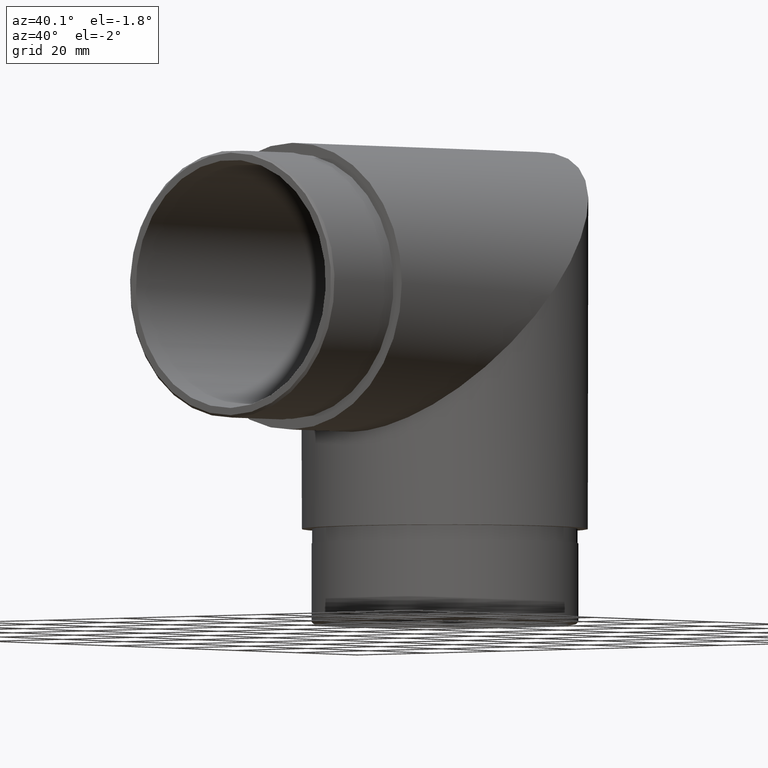
[diagram: clean part render]
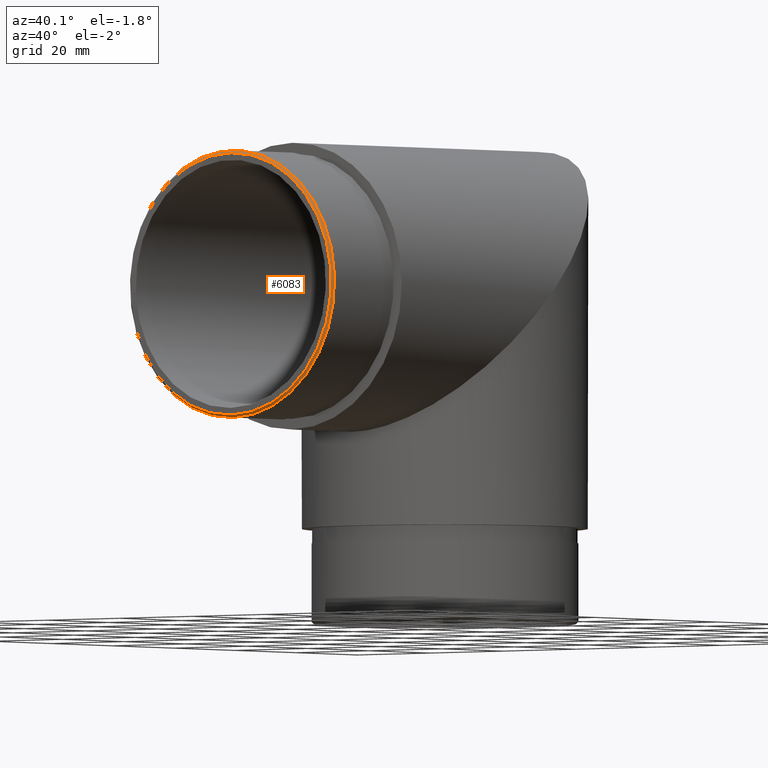
[diagram: same view with one face highlighted and labeled with its STEP entity id]
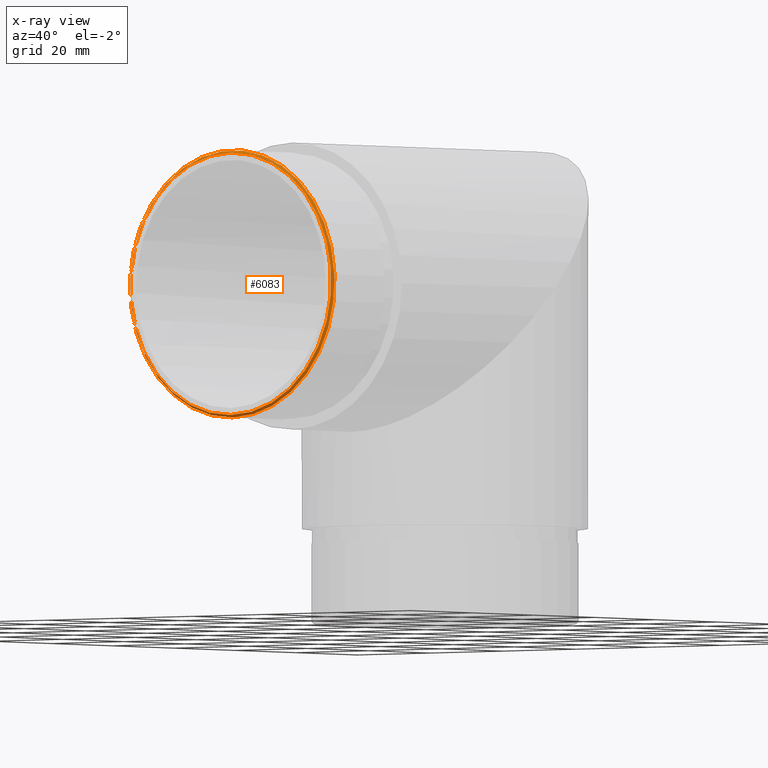
[diagram: x-ray of the same camera — body ghosted, the highlighted face saturated]
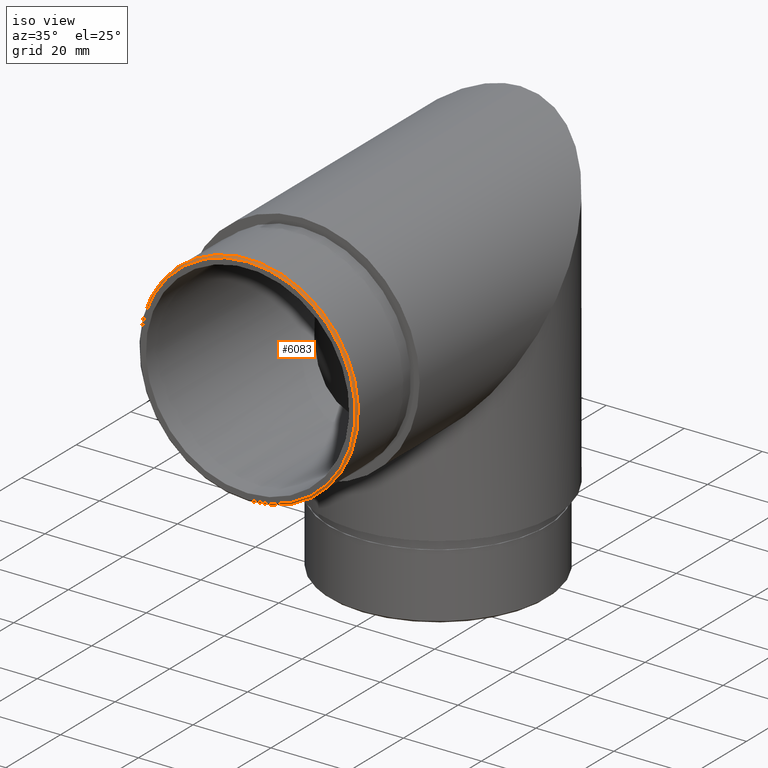
[diagram: same view with one face highlighted and labeled with its STEP entity id]
A machine part, auxiliary view. The second image highlights one B-rep face of the part: STEP entity #6083.
The next image is the same camera in x-ray: the body ghosted, the highlighted face saturated — about 0% of this face is hidden behind the body in this view.
A second angle (iso view) of the same face is appended — the face is thin or edge-on in the first view.
In plain terms, the highlighted conical surface has half-angle 45 deg.
Its self-contained STEP definition (entity closure, byte-faithful):
#535 = EDGE_LOOP ( 'NONE', ( #4344 ) ) ;
#687 = CIRCLE ( 'NONE', #4104, 28.09999999999999800 ) ;
#904 = DIRECTION ( 'NONE',  ( 0.0000000000000000000, 0.0000000000000000000, -1.000000000000000000 ) ) ;
#1808 = FACE_OUTER_BOUND ( 'NONE', #535, .T. ) ;
#2717 = CARTESIAN_POINT ( 'NONE',  ( 0.0000000000000000000, -19.50000000000000000, 0.0000000000000000000 ) ) ;
#2776 = CARTESIAN_POINT ( 'NONE',  ( 0.0000000000000000000, -20.00000000000000000, -27.59999999999999800 ) ) ;
#2933 = CARTESIAN_POINT ( 'NONE',  ( 0.0000000000000000000, -19.50000000000000000, -28.09999999999999800 ) ) ;
#3421 = DIRECTION ( 'NONE',  ( 0.0000000000000000000, 0.0000000000000000000, 1.000000000000000000 ) ) ;
#3677 = VERTEX_POINT ( 'NONE', #2776 ) ;
#4104 = AXIS2_PLACEMENT_3D ( 'NONE', #2717, #5121, #4267 ) ;
#4267 = DIRECTION ( 'NONE',  ( 0.0000000000000000000, 0.0000000000000000000, -1.000000000000000000 ) ) ;
#4344 = ORIENTED_EDGE ( 'NONE', *, *, #11084, .F. ) ;
#5121 = DIRECTION ( 'NONE',  ( 0.0000000000000000000, 1.000000000000000000, 0.0000000000000000000 ) ) ;
#5807 = VERTEX_POINT ( 'NONE', #2933 ) ;
#6083 = ADVANCED_FACE ( 'NONE', ( #1808, #7477 ), #6816, .T. ) ;
#6212 = EDGE_CURVE ( 'NONE', #3677, #3677, #8568, .T. ) ;
#6816 = CONICAL_SURFACE ( 'NONE', #10334, 27.59999999999999800, 0.7853981633974447300 ) ;
#6907 = ORIENTED_EDGE ( 'NONE', *, *, #6212, .F. ) ;
#7053 = DIRECTION ( 'NONE',  ( 0.0000000000000000000, -1.000000000000000000, 0.0000000000000000000 ) ) ;
#7477 = FACE_BOUND ( 'NONE', #10319, .T. ) ;
#7912 = CARTESIAN_POINT ( 'NONE',  ( 0.0000000000000000000, -20.00000000000000000, 0.0000000000000000000 ) ) ;
#8568 = CIRCLE ( 'NONE', #10937, 27.59999999999999800 ) ;
#10319 = EDGE_LOOP ( 'NONE', ( #6907 ) ) ;
#10334 = AXIS2_PLACEMENT_3D ( 'NONE', #11453, #11391, #3421 ) ;
#10937 = AXIS2_PLACEMENT_3D ( 'NONE', #7912, #7053, #904 ) ;
#11084 = EDGE_CURVE ( 'NONE', #5807, #5807, #687, .T. ) ;
#11391 = DIRECTION ( 'NONE',  ( 0.0000000000000000000, 1.000000000000000000, 0.0000000000000000000 ) ) ;
#11453 = CARTESIAN_POINT ( 'NONE',  ( 0.0000000000000000000, -20.00000000000000000, 0.0000000000000000000 ) ) ;